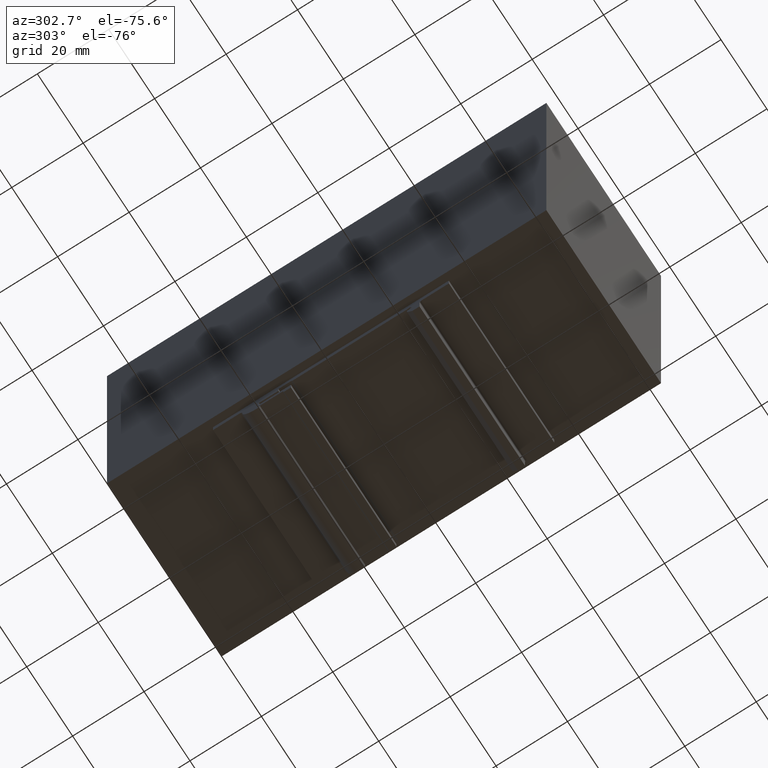
[diagram: clean part render]
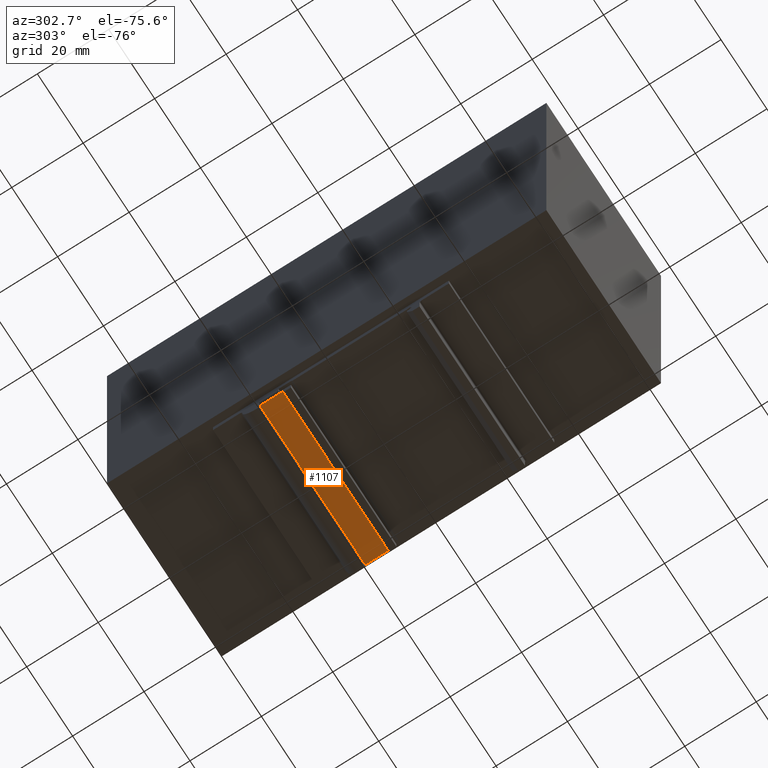
[diagram: same view with one face highlighted and labeled with its STEP entity id]
A machine part, auxiliary view. The second image highlights one B-rep face of the part: STEP entity #1107.
In plain terms, the highlighted planar face has unit normal (0, 0, 1).
Its self-contained STEP definition (entity closure, byte-faithful):
#25 = LINE ( 'NONE', #931, #1169 ) ;
#48 = VECTOR ( 'NONE', #1189, 1000.000000000000000 ) ;
#81 = AXIS2_PLACEMENT_3D ( 'NONE', #854, #861, #857 ) ;
#87 = LINE ( 'NONE', #567, #329 ) ;
#140 = VERTEX_POINT ( 'NONE', #310 ) ;
#156 = ORIENTED_EDGE ( 'NONE', *, *, #534, .T. ) ;
#190 = LINE ( 'NONE', #1022, #658 ) ;
#196 = DIRECTION ( 'NONE',  ( 0.0000000000000000000, -1.000000000000000000, 0.0000000000000000000 ) ) ;
#199 = ORIENTED_EDGE ( 'NONE', *, *, #1036, .F. ) ;
#200 = CARTESIAN_POINT ( 'NONE',  ( 22.99999999999999300, 13.57000000000001300, -57.99500000000000500 ) ) ;
#217 = DIRECTION ( 'NONE',  ( 1.000000000000000000, -0.0000000000000000000, -0.0000000000000000000 ) ) ;
#287 = VERTEX_POINT ( 'NONE', #889 ) ;
#289 = ORIENTED_EDGE ( 'NONE', *, *, #568, .F. ) ;
#292 = CARTESIAN_POINT ( 'NONE',  ( -25.00000000000000000, 19.99000000000001300, -57.99500000000000500 ) ) ;
#310 = CARTESIAN_POINT ( 'NONE',  ( -23.00000000000000700, 13.57000000000001300, -57.99500000000000500 ) ) ;
#329 = VECTOR ( 'NONE', #217, 1000.000000000000000 ) ;
#393 = PLANE ( 'NONE',  #81 ) ;
#524 = EDGE_CURVE ( 'NONE', #737, #1018, #25, .T. ) ;
#534 = EDGE_CURVE ( 'NONE', #287, #737, #587, .T. ) ;
#567 = CARTESIAN_POINT ( 'NONE',  ( -25.00000000000000000, 13.57000000000001300, -57.99500000000000500 ) ) ;
#568 = EDGE_CURVE ( 'NONE', #140, #1018, #87, .T. ) ;
#587 = LINE ( 'NONE', #292, #48 ) ;
#658 = VECTOR ( 'NONE', #1117, 1000.000000000000000 ) ;
#737 = VERTEX_POINT ( 'NONE', #805 ) ;
#805 = CARTESIAN_POINT ( 'NONE',  ( 22.99999999999999300, 19.99000000000001300, -57.99500000000000500 ) ) ;
#854 = CARTESIAN_POINT ( 'NONE',  ( -25.00000000000000000, 19.99000000000001300, -57.99500000000000500 ) ) ;
#857 = DIRECTION ( 'NONE',  ( 1.000000000000000000, 0.0000000000000000000, -0.0000000000000000000 ) ) ;
#861 = DIRECTION ( 'NONE',  ( 0.0000000000000000000, 0.0000000000000000000, 1.000000000000000000 ) ) ;
#889 = CARTESIAN_POINT ( 'NONE',  ( -23.00000000000000700, 19.99000000000001300, -57.99500000000000500 ) ) ;
#931 = CARTESIAN_POINT ( 'NONE',  ( 22.99999999999999300, 19.99000000000001300, -57.99500000000000500 ) ) ;
#980 = ORIENTED_EDGE ( 'NONE', *, *, #524, .T. ) ;
#1018 = VERTEX_POINT ( 'NONE', #200 ) ;
#1022 = CARTESIAN_POINT ( 'NONE',  ( -23.00000000000000700, -32.89999999999999100, -57.99500000000000500 ) ) ;
#1036 = EDGE_CURVE ( 'NONE', #287, #140, #190, .T. ) ;
#1062 = FACE_OUTER_BOUND ( 'NONE', #1126, .T. ) ;
#1107 = ADVANCED_FACE ( 'NONE', ( #1062 ), #393, .F. ) ;
#1117 = DIRECTION ( 'NONE',  ( -0.0000000000000000000, -1.000000000000000000, 0.0000000000000000000 ) ) ;
#1126 = EDGE_LOOP ( 'NONE', ( #156, #980, #289, #199 ) ) ;
#1169 = VECTOR ( 'NONE', #196, 1000.000000000000000 ) ;
#1189 = DIRECTION ( 'NONE',  ( 1.000000000000000000, -0.0000000000000000000, -0.0000000000000000000 ) ) ;